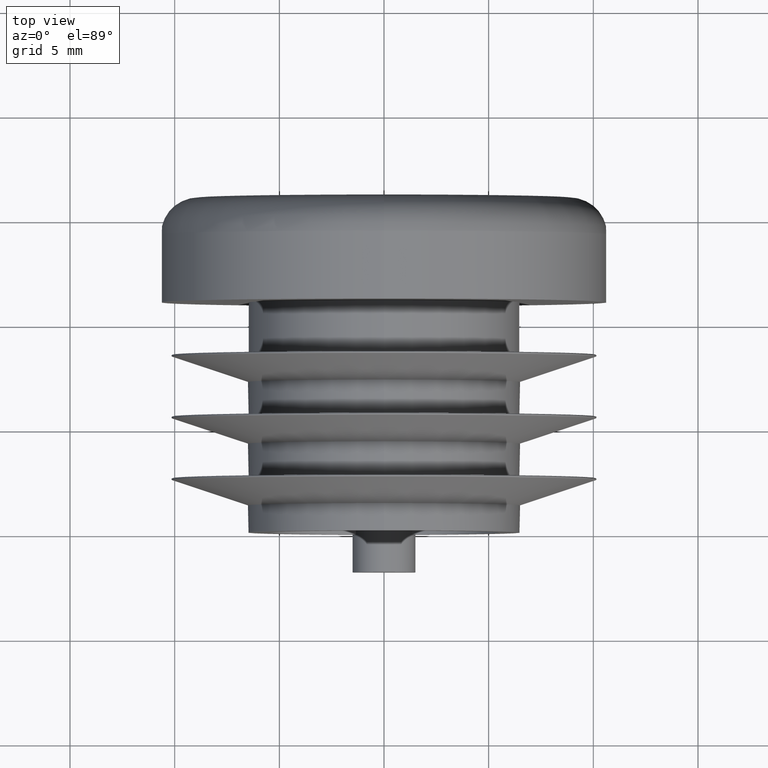
[diagram: clean part render]
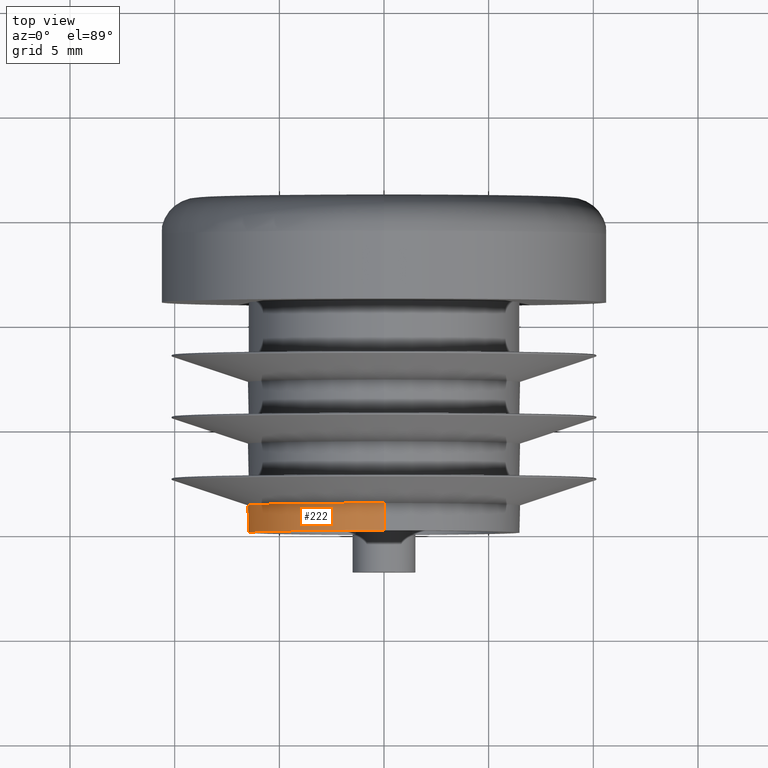
[diagram: same view with one face highlighted and labeled with its STEP entity id]
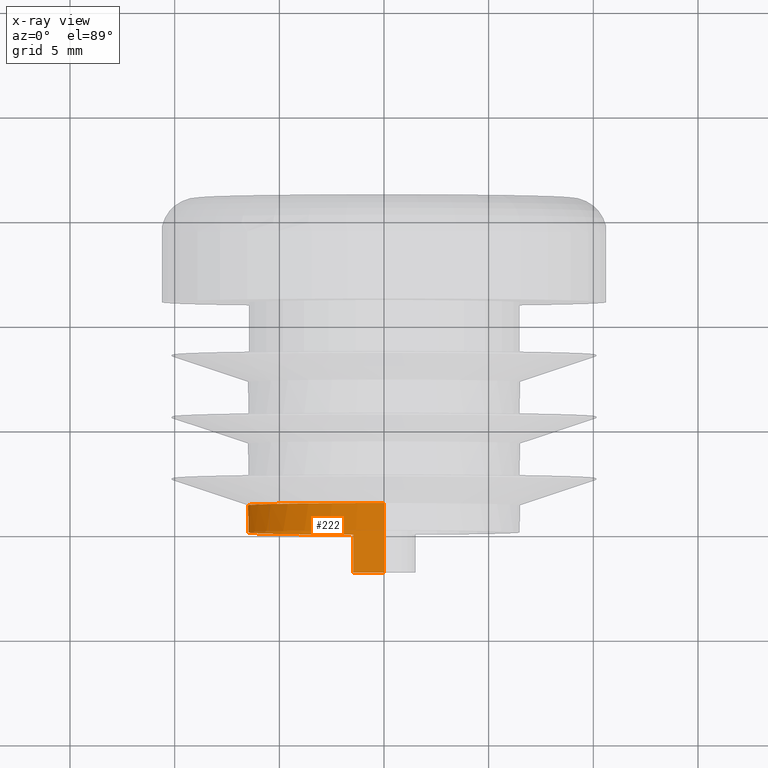
[diagram: x-ray of the same camera — body ghosted, the highlighted face saturated]
A machine part, top view. The second image highlights one B-rep face of the part: STEP entity #222.
The next image is the same camera in x-ray: the body ghosted, the highlighted face saturated — about 1% of this face is hidden behind the body in this view.
In plain terms, the highlighted cylindrical surface (partial cylindrical patch) has radius 6.5 mm, axis along (-0, -1, -0).
Its self-contained STEP definition (entity closure, byte-faithful):
#222 = ADVANCED_FACE ( 'NONE', ( #5894 ), #3375, .T. ) ;
#486 = EDGE_CURVE ( 'NONE', #5804, #9600, #671, .T. ) ;
#671 = LINE ( 'NONE', #5085, #4497 ) ;
#950 = VERTEX_POINT ( 'NONE', #4207 ) ;
#971 = CIRCLE ( 'NONE', #11393, 6.499999999999999112 ) ;
#1056 = LINE ( 'NONE', #7882, #5264 ) ;
#1160 = ORIENTED_EDGE ( 'NONE', *, *, #486, .F. ) ;
#1182 = EDGE_CURVE ( 'NONE', #10012, #6772, #1056, .T. ) ;
#2072 = CARTESIAN_POINT ( 'NONE',  ( -6.500000000000012434, 1.299999999999838618, 0.000000000000000000 ) ) ;
#2108 = CIRCLE ( 'NONE', #5205, 6.500000000000000000 ) ;
#2458 = CARTESIAN_POINT ( 'NONE',  ( 7.960204194457793505E-16, 1.299999999999906786, 6.499999999999999112 ) ) ;
#2507 = CARTESIAN_POINT ( 'NONE',  ( 0.000000000000000000, 11.00000000000000000, 0.000000000000000000 ) ) ;
#2867 = LINE ( 'NONE', #3352, #6530 ) ;
#3352 = CARTESIAN_POINT ( 'NONE',  ( -1.462494064565357021, -1.800000000000000044, -6.333333333333333925 ) ) ;
#3375 = CYLINDRICAL_SURFACE ( 'NONE', #7156, 6.499999999999999112 ) ;
#3621 = CARTESIAN_POINT ( 'NONE',  ( 0.000000000000000000, 0.000000000000000000, 0.000000000000000000 ) ) ;
#3627 = DIRECTION ( 'NONE',  ( 0.000000000000000000, -1.000000000000000000, 0.000000000000000000 ) ) ;
#3692 = CARTESIAN_POINT ( 'NONE',  ( -1.361677722148724505E-14, 1.299999999999906786, 0.000000000000000000 ) ) ;
#3786 = CARTESIAN_POINT ( 'NONE',  ( 0.000000000000000000, 1.299999999999906786, -6.499999999999999112 ) ) ;
#3788 = ORIENTED_EDGE ( 'NONE', *, *, #8112, .F. ) ;
#4207 = CARTESIAN_POINT ( 'NONE',  ( -1.462494064565357021, -1.800000000000000044, -6.333333333333333925 ) ) ;
#4410 = AXIS2_PLACEMENT_3D ( 'NONE', #7800, #5983, #6915 ) ;
#4447 = DIRECTION ( 'NONE',  ( 0.000000000000000000, 0.000000000000000000, -1.000000000000000000 ) ) ;
#4497 = VECTOR ( 'NONE', #6916, 1000.000000000000000 ) ;
#4596 = DIRECTION ( 'NONE',  ( -1.000000000000000000, -1.047506098955225919E-14, 0.000000000000000000 ) ) ;
#4816 = EDGE_CURVE ( 'NONE', #950, #10577, #2867, .T. ) ;
#5085 = CARTESIAN_POINT ( 'NONE',  ( 7.960204194457794491E-16, 11.00000000000000000, 6.499999999999999112 ) ) ;
#5108 = ORIENTED_EDGE ( 'NONE', *, *, #6633, .F. ) ;
#5116 = EDGE_LOOP ( 'NONE', ( #1160, #3788, #10676, #10279, #11022, #6890, #5108 ) ) ;
#5205 = AXIS2_PLACEMENT_3D ( 'NONE', #3621, #9848, #4447 ) ;
#5264 = VECTOR ( 'NONE', #8866, 1000.000000000000000 ) ;
#5594 = VERTEX_POINT ( 'NONE', #2072 ) ;
#5804 = VERTEX_POINT ( 'NONE', #2458 ) ;
#5894 = FACE_OUTER_BOUND ( 'NONE', #5116, .T. ) ;
#5983 = DIRECTION ( 'NONE',  ( -1.047444401652940164E-14, 1.000000000000000000, 0.000000000000000000 ) ) ;
#6271 = CARTESIAN_POINT ( 'NONE',  ( 7.960204194457796463E-16, 0.000000000000000000, 6.500000000000000888 ) ) ;
#6530 = VECTOR ( 'NONE', #6862, 1000.000000000000000 ) ;
#6601 = AXIS2_PLACEMENT_3D ( 'NONE', #8218, #3627, #10895 ) ;
#6633 = EDGE_CURVE ( 'NONE', #9600, #10577, #2108, .T. ) ;
#6772 = VERTEX_POINT ( 'NONE', #11040 ) ;
#6862 = DIRECTION ( 'NONE',  ( -0.000000000000000000, 1.000000000000000000, -0.000000000000000000 ) ) ;
#6875 = DIRECTION ( 'NONE',  ( 0.000000000000000000, 0.000000000000000000, -1.000000000000000000 ) ) ;
#6890 = ORIENTED_EDGE ( 'NONE', *, *, #4816, .T. ) ;
#6915 = DIRECTION ( 'NONE',  ( -1.000000000000000000, -1.047506098955225919E-14, 0.000000000000000000 ) ) ;
#6916 = DIRECTION ( 'NONE',  ( -0.000000000000000000, -1.000000000000000000, -0.000000000000000000 ) ) ;
#6988 = EDGE_CURVE ( 'NONE', #10012, #5594, #9420, .T. ) ;
#7156 = AXIS2_PLACEMENT_3D ( 'NONE', #2507, #8367, #6875 ) ;
#7523 = EDGE_CURVE ( 'NONE', #950, #6772, #11254, .T. ) ;
#7800 = CARTESIAN_POINT ( 'NONE',  ( -1.361677722148724505E-14, 1.299999999999906786, 0.000000000000000000 ) ) ;
#7882 = CARTESIAN_POINT ( 'NONE',  ( 0.000000000000000000, 11.00000000000000000, -6.499999999999999112 ) ) ;
#8112 = EDGE_CURVE ( 'NONE', #5594, #5804, #971, .T. ) ;
#8218 = CARTESIAN_POINT ( 'NONE',  ( 0.000000000000000000, -1.800000000000000044, 0.000000000000000000 ) ) ;
#8328 = CARTESIAN_POINT ( 'NONE',  ( -1.462494064565356577, 0.000000000000000000, -6.333333333333332149 ) ) ;
#8367 = DIRECTION ( 'NONE',  ( -0.000000000000000000, -1.000000000000000000, -0.000000000000000000 ) ) ;
#8866 = DIRECTION ( 'NONE',  ( -0.000000000000000000, -1.000000000000000000, -0.000000000000000000 ) ) ;
#9420 = CIRCLE ( 'NONE', #4410, 6.499999999999999112 ) ;
#9600 = VERTEX_POINT ( 'NONE', #6271 ) ;
#9848 = DIRECTION ( 'NONE',  ( -0.000000000000000000, -1.000000000000000000, -0.000000000000000000 ) ) ;
#9960 = DIRECTION ( 'NONE',  ( -1.047444401652940164E-14, 1.000000000000000000, 0.000000000000000000 ) ) ;
#10012 = VERTEX_POINT ( 'NONE', #3786 ) ;
#10279 = ORIENTED_EDGE ( 'NONE', *, *, #1182, .T. ) ;
#10577 = VERTEX_POINT ( 'NONE', #8328 ) ;
#10676 = ORIENTED_EDGE ( 'NONE', *, *, #6988, .F. ) ;
#10895 = DIRECTION ( 'NONE',  ( 0.000000000000000000, 0.000000000000000000, -1.000000000000000000 ) ) ;
#11022 = ORIENTED_EDGE ( 'NONE', *, *, #7523, .F. ) ;
#11040 = CARTESIAN_POINT ( 'NONE',  ( 0.000000000000000000, -1.800000000000000044, -6.500000000000001776 ) ) ;
#11254 = CIRCLE ( 'NONE', #6601, 6.500000000000001776 ) ;
#11393 = AXIS2_PLACEMENT_3D ( 'NONE', #3692, #9960, #4596 ) ;